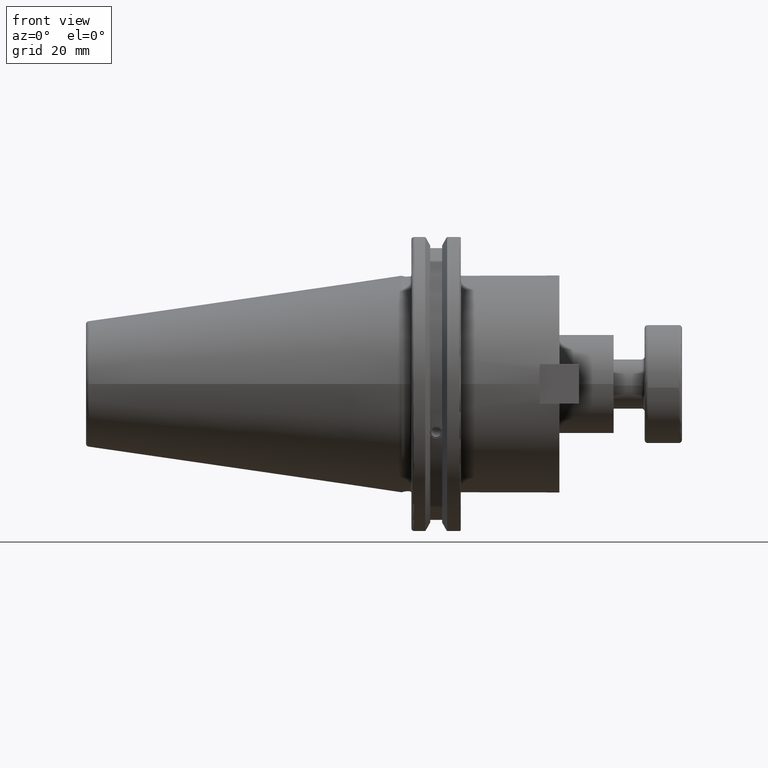
[diagram: clean part render]
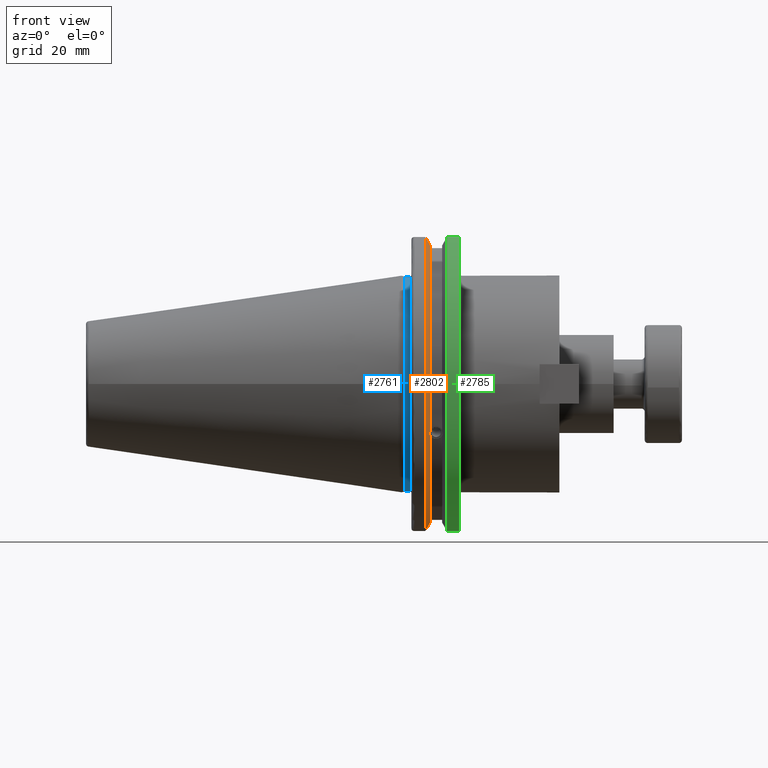
[diagram: same view with three faces highlighted in distinct colors, each labeled with its STEP entity id]
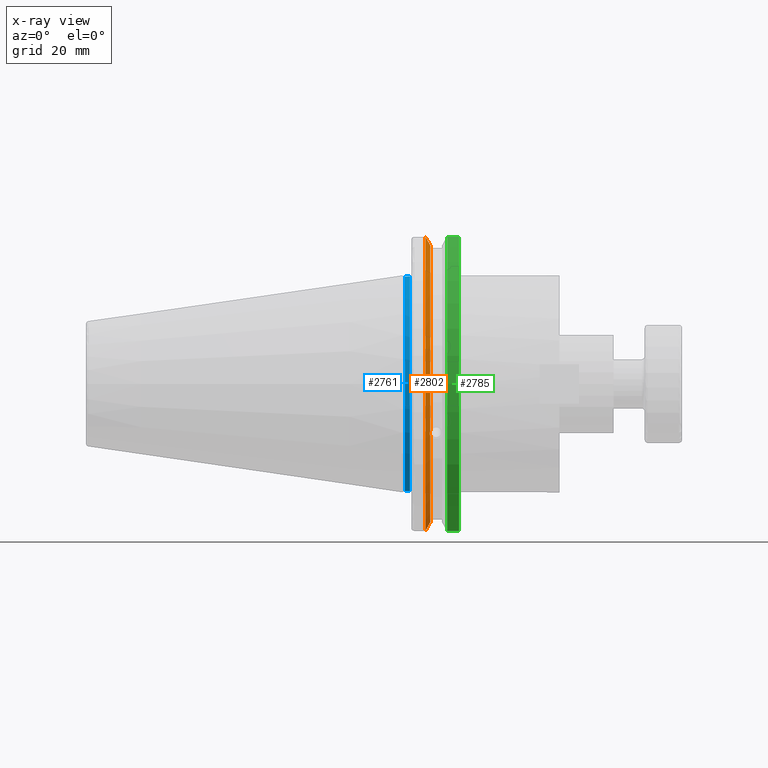
[diagram: x-ray of the same camera — body ghosted, the three highlighted faces saturated]
A machine part, front view with three faces highlighted in distinct colors.
The next image is the same camera in x-ray (body ghosted, the three faces saturated) — at least one of them is partly hidden behind the body in this view.
Their STEP definitions:

[orange] entity #2802 — the highlighted conical surface has half-angle 60 deg.
#462=(
BOUNDED_CURVE()
B_SPLINE_CURVE(2,(#4874,#4875,#4876),.UNSPECIFIED.,.F.,.F.)
B_SPLINE_CURVE_WITH_KNOTS((3,3),(0.,0.275823910674601),.UNSPECIFIED.)
CURVE()
GEOMETRIC_REPRESENTATION_ITEM()
RATIONAL_B_SPLINE_CURVE((1.,1.00038235573593,1.00012873636487))
REPRESENTATION_ITEM('')
);
#465=(
BOUNDED_CURVE()
B_SPLINE_CURVE(2,(#5002,#5003,#5004),.UNSPECIFIED.,.F.,.F.)
B_SPLINE_CURVE_WITH_KNOTS((3,3),(0.,0.0648240472897372),.UNSPECIFIED.)
CURVE()
GEOMETRIC_REPRESENTATION_ITEM()
RATIONAL_B_SPLINE_CURVE((1.,1.00011477674836,1.00019140645948))
REPRESENTATION_ITEM('')
);
#466=(
BOUNDED_CURVE()
B_SPLINE_CURVE(2,(#5012,#5013,#5014),.UNSPECIFIED.,.F.,.F.)
B_SPLINE_CURVE_WITH_KNOTS((3,3),(0.325260944932348,0.390084992222201),
 .UNSPECIFIED.)
CURVE()
GEOMETRIC_REPRESENTATION_ITEM()
RATIONAL_B_SPLINE_CURVE((1.00019140645916,1.00011477674817,1.))
REPRESENTATION_ITEM('')
);
#467=(
BOUNDED_CURVE()
B_SPLINE_CURVE(2,(#5064,#5065,#5066),.UNSPECIFIED.,.F.,.F.)
B_SPLINE_CURVE_WITH_KNOTS((3,3),(0.0558332664507492,0.331657177124507),
 .UNSPECIFIED.)
CURVE()
GEOMETRIC_REPRESENTATION_ITEM()
RATIONAL_B_SPLINE_CURVE((1.00012873636807,1.00038235574544,1.))
REPRESENTATION_ITEM('')
);
#489=B_SPLINE_CURVE_WITH_KNOTS('',3,(#4465,#4466,#4467,#4468,#4469,#4470,
#4471,#4472,#4473,#4474,#4475,#4476,#4477,#4478),.UNSPECIFIED.,.F.,.F.,
(4,2,2,2,2,2,4),(0.426712868358719,0.441644498666905,0.480313313223129,
0.518982127779352,0.557650942335576,0.596319756891799,0.611251387199982),
 .UNSPECIFIED.);
#567=CONICAL_SURFACE('',#3173,47.8172386482472,1.0471975511966);
#634=CIRCLE('',#3077,46.4219772964944);
#658=CIRCLE('',#3127,49.2125);
#674=CIRCLE('',#3174,46.4219772964944);
#820=FACE_OUTER_BOUND('',#981,.T.);
#981=EDGE_LOOP('',(#2411,#2412,#2413,#2414,#2415,#2416,#2417,#2418));
#1418=VERTEX_POINT('',#4462);
#1419=VERTEX_POINT('',#4464);
#1436=VERTEX_POINT('',#4555);
#1490=VERTEX_POINT('',#4871);
#1491=VERTEX_POINT('',#4873);
#1517=VERTEX_POINT('',#5000);
#1518=VERTEX_POINT('',#5006);
#1519=VERTEX_POINT('',#5010);
#1669=EDGE_CURVE('',#1419,#1418,#489,.T.);
#1692=EDGE_CURVE('',#1419,#1436,#634,.T.);
#1762=EDGE_CURVE('',#1491,#1490,#462,.T.);
#1799=EDGE_CURVE('',#1517,#1490,#465,.T.);
#1801=EDGE_CURVE('',#1517,#1518,#658,.T.);
#1803=EDGE_CURVE('',#1519,#1518,#466,.T.);
#1821=EDGE_CURVE('',#1519,#1436,#467,.T.);
#1841=EDGE_CURVE('',#1491,#1418,#674,.T.);
#2411=ORIENTED_EDGE('',*,*,#1669,.T.);
#2412=ORIENTED_EDGE('',*,*,#1841,.F.);
#2413=ORIENTED_EDGE('',*,*,#1762,.T.);
#2414=ORIENTED_EDGE('',*,*,#1799,.F.);
#2415=ORIENTED_EDGE('',*,*,#1801,.T.);
#2416=ORIENTED_EDGE('',*,*,#1803,.F.);
#2417=ORIENTED_EDGE('',*,*,#1821,.T.);
#2418=ORIENTED_EDGE('',*,*,#1692,.F.);
#2802=ADVANCED_FACE('',(#820),#567,.T.);
#3077=AXIS2_PLACEMENT_3D('',#4556,#3510,#3511);
#3127=AXIS2_PLACEMENT_3D('',#5008,#3663,#3664);
#3173=AXIS2_PLACEMENT_3D('',#5115,#3773,#3774);
#3174=AXIS2_PLACEMENT_3D('',#5116,#3775,#3776);
#3510=DIRECTION('center_axis',(1.,0.,0.));
#3511=DIRECTION('ref_axis',(0.,0.,-1.));
#3663=DIRECTION('center_axis',(1.,0.,0.));
#3664=DIRECTION('ref_axis',(0.,0.,-1.));
#3773=DIRECTION('center_axis',(-1.,0.,0.));
#3774=DIRECTION('ref_axis',(0.,-1.,-1.22464679914735E-16));
#3775=DIRECTION('center_axis',(1.,0.,0.));
#3776=DIRECTION('ref_axis',(0.,0.,-1.));
#4462=CARTESIAN_POINT('',(9.2191,-43.9096390749305,-15.0646464421033));
#4464=CARTESIAN_POINT('',(9.2191,-43.3201030900029,-16.6843832486479));
#4465=CARTESIAN_POINT('Ctrl Pts',(9.2191,-43.3201030900029,-16.6843832486479));
#4466=CARTESIAN_POINT('Ctrl Pts',(9.20211843903391,-43.3613106941341,-16.6592273018006));
#4467=CARTESIAN_POINT('Ctrl Pts',(9.18608675403322,-43.4012416983557,-16.6326763251437));
#4468=CARTESIAN_POINT('Ctrl Pts',(9.13238673845037,-43.5391037343221,-16.5325130832406));
#4469=CARTESIAN_POINT('Ctrl Pts',(9.09621610663555,-43.6406982153491,-16.441180795372));
#4470=CARTESIAN_POINT('Ctrl Pts',(9.04690868251975,-43.8110833825827,-16.2291323464527));
#4471=CARTESIAN_POINT('Ctrl Pts',(9.0341,-43.8794096049168,-16.10796730316));
#4472=CARTESIAN_POINT('Ctrl Pts',(9.03409999999999,-43.9675796948952,-15.8657219718732));
#4473=CARTESIAN_POINT('Ctrl Pts',(9.04690868251975,-43.9931221605126,-15.7289849146254));
#4474=CARTESIAN_POINT('Ctrl Pts',(9.09621610663555,-43.9989016655819,-15.4570249042868));
#4475=CARTESIAN_POINT('Ctrl Pts',(9.13238673845037,-43.9797830409458,-15.3217566390708));
#4476=CARTESIAN_POINT('Ctrl Pts',(9.18608675403322,-43.9385582852181,-15.1564111356409));
#4477=CARTESIAN_POINT('Ctrl Pts',(9.20211843903391,-43.9250360001461,-15.1104047527575));
#4478=CARTESIAN_POINT('Ctrl Pts',(9.21909999999999,-43.9096390749305,-15.0646464421033));
#4555=CARTESIAN_POINT('',(9.2191,-12.95,-44.5791147973604));
#4556=CARTESIAN_POINT('Origin',(9.2191,0.,0.));
#4871=CARTESIAN_POINT('',(7.88638960562424,-12.95,46.9780755322918));
#4873=CARTESIAN_POINT('',(9.2191,-12.95,44.5791147973604));
#4874=CARTESIAN_POINT('Ctrl Pts',(9.2191,-12.95,44.5791147973604));
#4875=CARTESIAN_POINT('Ctrl Pts',(8.57020449055857,-12.95,45.7494966802148));
#4876=CARTESIAN_POINT('Ctrl Pts',(7.88638960562424,-12.95,46.9780755322918));
#5000=CARTESIAN_POINT('',(7.60799096595127,-13.4317035994433,47.3440544806494));
#5002=CARTESIAN_POINT('Ctrl Pts',(7.60799096595126,-13.4317035994433,47.3440544806494));
#5003=CARTESIAN_POINT('Ctrl Pts',(7.7482689666382,-13.1896660169966,47.1601640966265));
#5004=CARTESIAN_POINT('Ctrl Pts',(7.88638960562424,-12.95,46.9780755322918));
#5006=CARTESIAN_POINT('',(7.60799096595127,-13.4317035994433,-47.3440544806494));
#5008=CARTESIAN_POINT('Origin',(7.60799096595127,0.,0.));
#5010=CARTESIAN_POINT('',(7.88638960562425,-12.95,-46.9780755322918));
#5012=CARTESIAN_POINT('Ctrl Pts',(7.88638960562425,-12.95,-46.9780755322918));
#5013=CARTESIAN_POINT('Ctrl Pts',(7.74826896663813,-13.1896660169967,-47.1601640966265));
#5014=CARTESIAN_POINT('Ctrl Pts',(7.60799096595127,-13.4317035994434,-47.3440544806494));
#5064=CARTESIAN_POINT('Ctrl Pts',(7.88638960562425,-12.95,-46.9780755322918));
#5065=CARTESIAN_POINT('Ctrl Pts',(8.57020449054166,-12.95,-45.7494966802452));
#5066=CARTESIAN_POINT('Ctrl Pts',(9.2191,-12.95,-44.5791147973604));
#5115=CARTESIAN_POINT('Origin',(8.41354548297563,0.,0.));
#5116=CARTESIAN_POINT('Origin',(9.2191,0.,0.));

[blue] entity #2761 — the highlighted cylindrical surface (bore or boss wall) has radius 34.625 mm, axis along (1, 0, 0).
#538=CYLINDRICAL_SURFACE('',#3110,34.625);
#646=CIRCLE('',#3103,34.625);
#649=CIRCLE('',#3106,34.625);
#652=CIRCLE('',#3111,34.625);
#779=FACE_OUTER_BOUND('',#936,.T.);
#936=EDGE_LOOP('',(#2194,#2195,#2196,#2197,#2198));
#1101=LINE('',#4818,#1267);
#1267=VECTOR('',#3602,34.625);
#1466=VERTEX_POINT('',#4784);
#1467=VERTEX_POINT('',#4785);
#1481=VERTEX_POINT('',#4817);
#1732=EDGE_CURVE('',#1466,#1467,#646,.T.);
#1735=EDGE_CURVE('',#1467,#1466,#649,.T.);
#1748=EDGE_CURVE('',#1466,#1481,#1101,.T.);
#1749=EDGE_CURVE('',#1481,#1481,#652,.T.);
#2194=ORIENTED_EDGE('',*,*,#1732,.F.);
#2195=ORIENTED_EDGE('',*,*,#1748,.T.);
#2196=ORIENTED_EDGE('',*,*,#1749,.T.);
#2197=ORIENTED_EDGE('',*,*,#1748,.F.);
#2198=ORIENTED_EDGE('',*,*,#1735,.F.);
#2761=ADVANCED_FACE('',(#779),#538,.T.);
#3103=AXIS2_PLACEMENT_3D('',#4786,#3576,#3577);
#3106=AXIS2_PLACEMENT_3D('',#4790,#3582,#3583);
#3110=AXIS2_PLACEMENT_3D('',#4816,#3600,#3601);
#3111=AXIS2_PLACEMENT_3D('',#4819,#3603,#3604);
#3576=DIRECTION('center_axis',(1.,0.,0.));
#3577=DIRECTION('ref_axis',(0.,-1.,1.83697019872103E-16));
#3582=DIRECTION('center_axis',(1.,0.,0.));
#3583=DIRECTION('ref_axis',(0.,-1.,1.83697019872103E-16));
#3600=DIRECTION('center_axis',(1.,0.,0.));
#3601=DIRECTION('ref_axis',(0.,1.,0.));
#3602=DIRECTION('',(-1.,0.,0.));
#3603=DIRECTION('center_axis',(1.,0.,0.));
#3604=DIRECTION('ref_axis',(0.,0.,-1.));
#4784=CARTESIAN_POINT('',(2.675,-34.625,-4.24033954204771E-15));
#4785=CARTESIAN_POINT('',(2.675,-4.24033954204771E-15,34.625));
#4786=CARTESIAN_POINT('Origin',(2.675,0.,0.));
#4790=CARTESIAN_POINT('Origin',(2.675,0.,0.));
#4816=CARTESIAN_POINT('Origin',(2.14730762113532,0.,0.));
#4817=CARTESIAN_POINT('',(1.11961524227064,-34.625,-4.24033954204771E-15));
#4818=CARTESIAN_POINT('',(2.14730762113532,-34.625,-4.24033954204771E-15));
#4819=CARTESIAN_POINT('Origin',(1.11961524227064,0.,0.));

[green] entity #2785 — the highlighted cylindrical surface (partial cylindrical patch) has radius 49.2125 mm, axis along (1, 0, 0).
#540=CYLINDRICAL_SURFACE('',#3148,49.2125);
#630=CIRCLE('',#3070,49.2125);
#654=CIRCLE('',#3114,49.2125);
#803=FACE_OUTER_BOUND('',#962,.T.);
#962=EDGE_LOOP('',(#2340,#2341,#2342,#2343));
#1103=LINE('',#4859,#1269);
#1139=LINE('',#5068,#1305);
#1269=VECTOR('',#3614,10.);
#1305=VECTOR('',#3714,10.);
#1430=VERTEX_POINT('',#4531);
#1431=VERTEX_POINT('',#4535);
#1486=VERTEX_POINT('',#4834);
#1487=VERTEX_POINT('',#4845);
#1684=EDGE_CURVE('',#1431,#1430,#630,.T.);
#1754=EDGE_CURVE('',#1486,#1487,#654,.T.);
#1757=EDGE_CURVE('',#1431,#1486,#1103,.T.);
#1822=EDGE_CURVE('',#1487,#1430,#1139,.T.);
#2340=ORIENTED_EDGE('',*,*,#1754,.F.);
#2341=ORIENTED_EDGE('',*,*,#1757,.F.);
#2342=ORIENTED_EDGE('',*,*,#1684,.T.);
#2343=ORIENTED_EDGE('',*,*,#1822,.F.);
#2785=ADVANCED_FACE('',(#803),#540,.T.);
#3070=AXIS2_PLACEMENT_3D('',#4536,#3494,#3495);
#3114=AXIS2_PLACEMENT_3D('',#4846,#3609,#3610);
#3148=AXIS2_PLACEMENT_3D('',#5069,#3715,#3716);
#3494=DIRECTION('center_axis',(1.,0.,0.));
#3495=DIRECTION('ref_axis',(0.,0.,-1.));
#3609=DIRECTION('center_axis',(1.,0.,0.));
#3610=DIRECTION('ref_axis',(0.,-1.,1.60812264967664E-16));
#3614=DIRECTION('',(1.,0.,0.));
#3714=DIRECTION('',(-1.,0.,0.));
#3715=DIRECTION('center_axis',(1.,0.,0.));
#3716=DIRECTION('ref_axis',(0.,-1.,1.22464679914735E-16));
#4531=CARTESIAN_POINT('',(14.6602090340487,-13.4317035994433,-47.3440544806494));
#4535=CARTESIAN_POINT('',(14.6602090340487,-13.4317035994433,47.3440544806494));
#4536=CARTESIAN_POINT('Origin',(14.6602090340487,0.,0.));
#4834=CARTESIAN_POINT('',(18.55,-13.4317035994433,47.3440544806494));
#4845=CARTESIAN_POINT('',(18.55,-13.4317035994433,-47.3440544806494));
#4846=CARTESIAN_POINT('Origin',(18.55,0.,0.));
#4859=CARTESIAN_POINT('',(16.8551045170244,-13.4317035994433,47.3440544806494));
#5068=CARTESIAN_POINT('',(16.8551045170244,-13.4317035994433,-47.3440544806494));
#5069=CARTESIAN_POINT('Origin',(16.8551045170244,0.,0.));